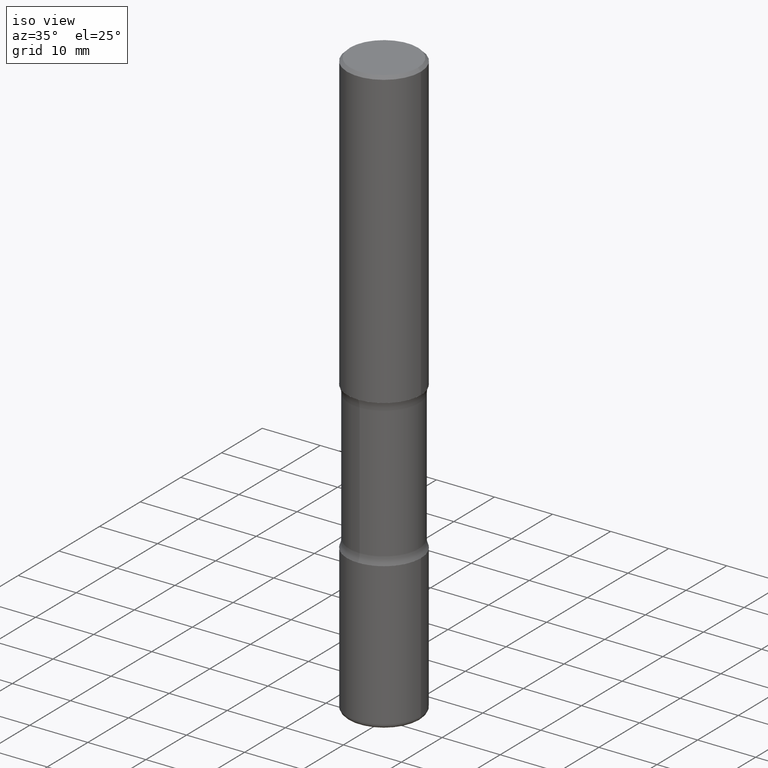
[diagram: clean part render]
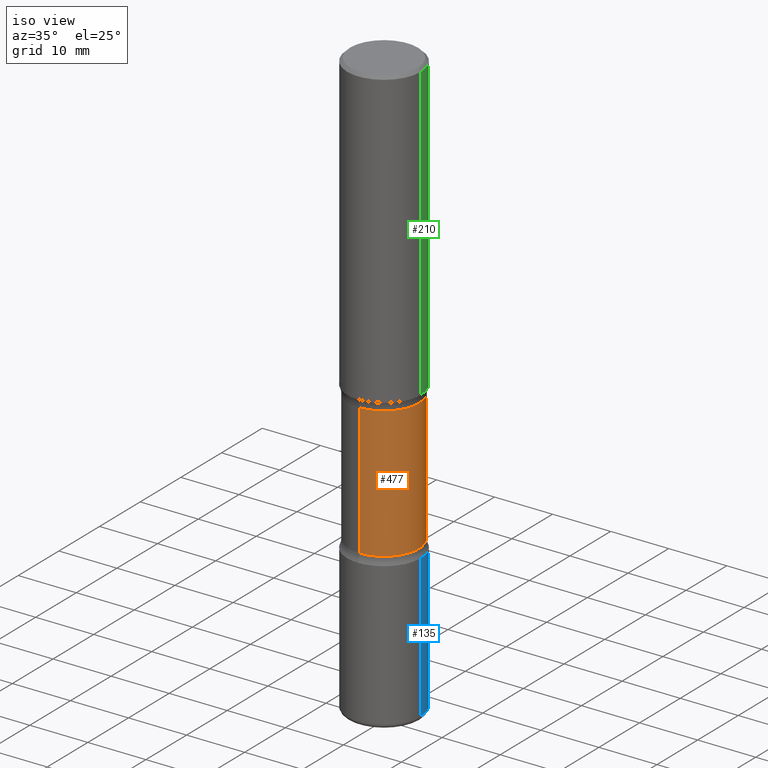
[diagram: same view with three faces highlighted in distinct colors, each labeled with its STEP entity id]
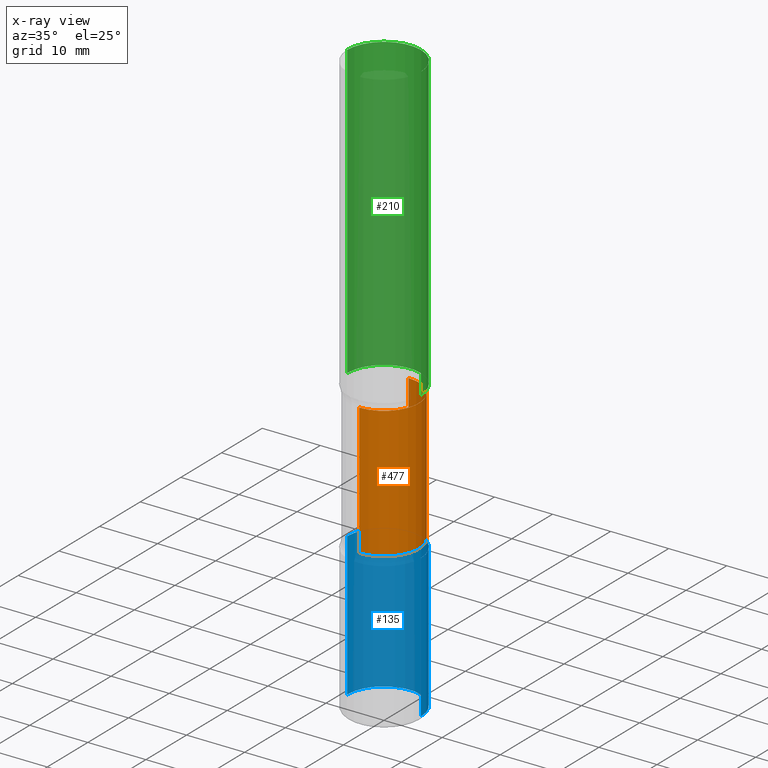
[diagram: x-ray of the same camera — body ghosted, the three highlighted faces saturated]
A machine part, iso view with three faces highlighted in distinct colors.
The next image is the same camera in x-ray (body ghosted, the three faces saturated) — at least one of them is partly hidden behind the body in this view.
Their STEP definitions:

[orange] entity #477 — the highlighted cylindrical surface (partial cylindrical patch) has radius 6.0325 mm, axis along (0, -0, -1).
#23 = CYLINDRICAL_SURFACE ( 'NONE', #364, 0.2375000000000000999 ) ;
#29 = CARTESIAN_POINT ( 'NONE',  ( 1.658453635950538436E-15, 0.2374999999999928557, -2.054486236794259568 ) ) ;
#39 = CARTESIAN_POINT ( 'NONE',  ( 7.198535619023675570E-29, -1.029083161580289368E-14, -2.945513763205741320 ) ) ;
#42 = CARTESIAN_POINT ( 'NONE',  ( 4.943898765775623630E-29, -7.288170524422749615E-15, -2.054486236794258680 ) ) ;
#56 = VECTOR ( 'NONE', #376, 39.37007874015748143 ) ;
#99 = ORIENTED_EDGE ( 'NONE', *, *, #448, .T. ) ;
#132 = DIRECTION ( 'NONE',  ( 6.982962677686265133E-15, 1.000000000000000000, -3.450755360418014766E-15 ) ) ;
#166 = CARTESIAN_POINT ( 'NONE',  ( -1.629368274470640415E-15, -0.2375000000000139222, -3.999999999999999556 ) ) ;
#169 = CIRCLE ( 'NONE', #224, 0.2375000000000000722 ) ;
#174 = CARTESIAN_POINT ( 'NONE',  ( 9.866784870866931853E-29, -1.384432990936266734E-14, -4.000000000000000000 ) ) ;
#189 = LINE ( 'NONE', #166, #56 ) ;
#224 = AXIS2_PLACEMENT_3D ( 'NONE', #39, #370, #532 ) ;
#236 = VERTEX_POINT ( 'NONE', #423 ) ;
#255 = DIRECTION ( 'NONE',  ( 2.530378452311521502E-29, -3.369885892833230986E-15, -1.000000000000000000 ) ) ;
#261 = ORIENTED_EDGE ( 'NONE', *, *, #281, .F. ) ;
#280 = CIRCLE ( 'NONE', #429, 0.2375000000000001277 ) ;
#281 = EDGE_CURVE ( 'NONE', #553, #522, #169, .T. ) ;
#300 = DIRECTION ( 'NONE',  ( 6.982962677686265133E-15, 1.000000000000000000, -2.300503573612010239E-15 ) ) ;
#332 = LINE ( 'NONE', #489, #534 ) ;
#345 = EDGE_CURVE ( 'NONE', #557, #553, #332, .T. ) ;
#346 = DIRECTION ( 'NONE',  ( 2.530378452311521502E-29, -3.369885892833230986E-15, -1.000000000000000000 ) ) ;
#347 = ORIENTED_EDGE ( 'NONE', *, *, #345, .F. ) ;
#364 = AXIS2_PLACEMENT_3D ( 'NONE', #174, #255, #300 ) ;
#370 = DIRECTION ( 'NONE',  ( 2.530378452311521502E-29, -3.369885892833230986E-15, -1.000000000000000000 ) ) ;
#376 = DIRECTION ( 'NONE',  ( 2.530378452311521502E-29, -3.369885892833230592E-15, -1.000000000000000000 ) ) ;
#399 = DIRECTION ( 'NONE',  ( 2.530378452311521502E-29, -3.369885892833230592E-15, -1.000000000000000000 ) ) ;
#423 = CARTESIAN_POINT ( 'NONE',  ( -1.672246386956763723E-15, -0.2375000000000074274, -2.054486236794258236 ) ) ;
#429 = AXIS2_PLACEMENT_3D ( 'NONE', #42, #346, #132 ) ;
#435 = ORIENTED_EDGE ( 'NONE', *, *, #519, .T. ) ;
#448 = EDGE_CURVE ( 'NONE', #236, #522, #189, .T. ) ;
#468 = EDGE_LOOP ( 'NONE', ( #435, #99, #261, #347 ) ) ;
#477 = ADVANCED_FACE ( 'NONE', ( #543 ), #23, .T. ) ;
#489 = CARTESIAN_POINT ( 'NONE',  ( 1.658453635950587543E-15, 0.2374999999999862776, -4.000000000000000888 ) ) ;
#502 = CARTESIAN_POINT ( 'NONE',  ( -1.672246386956739071E-15, -0.2375000000000103417, -2.945513763205740876 ) ) ;
#519 = EDGE_CURVE ( 'NONE', #557, #236, #280, .T. ) ;
#522 = VERTEX_POINT ( 'NONE', #502 ) ;
#532 = DIRECTION ( 'NONE',  ( 6.982962677686265133E-15, 1.000000000000000000, -2.300503573612010239E-15 ) ) ;
#534 = VECTOR ( 'NONE', #399, 39.37007874015748143 ) ;
#540 = CARTESIAN_POINT ( 'NONE',  ( 1.658453635950560525E-15, 0.2374999999999897748, -2.945513763205741764 ) ) ;
#543 = FACE_OUTER_BOUND ( 'NONE', #468, .T. ) ;
#553 = VERTEX_POINT ( 'NONE', #540 ) ;
#557 = VERTEX_POINT ( 'NONE', #29 ) ;

[blue] entity #135 — the highlighted cylindrical surface (partial cylindrical patch) has radius 6.35 mm, axis along (-0, 0, 1).
#28 = DIRECTION ( 'NONE',  ( 1.000000000000000000, -6.982962677686267499E-15, 0.000000000000000000 ) ) ;
#65 = VECTOR ( 'NONE', #287, 39.37007874015748143 ) ;
#68 = FACE_OUTER_BOUND ( 'NONE', #466, .T. ) ;
#73 = DIRECTION ( 'NONE',  ( -2.445468806185136597E-29, 3.491481338843145583E-15, 1.000000000000000000 ) ) ;
#95 = DIRECTION ( 'NONE',  ( 1.000000000000000000, -6.982962677686266711E-15, 4.876176775795935793E-29 ) ) ;
#129 = VERTEX_POINT ( 'NONE', #157 ) ;
#135 = ADVANCED_FACE ( 'NONE', ( #68 ), #408, .T. ) ;
#139 = CARTESIAN_POINT ( 'NONE',  ( 0.000000000000000000, 0.000000000000000000, 0.000000000000000000 ) ) ;
#157 = CARTESIAN_POINT ( 'NONE',  ( 0.2500000000000002776, -1.222018468595100619E-14, -3.000000000000000444 ) ) ;
#159 = EDGE_CURVE ( 'NONE', #172, #366, #411, .T. ) ;
#165 = LINE ( 'NONE', #335, #204 ) ;
#172 = VERTEX_POINT ( 'NONE', #342 ) ;
#199 = EDGE_CURVE ( 'NONE', #219, #172, #231, .T. ) ;
#204 = VECTOR ( 'NONE', #494, 39.37007874015748143 ) ;
#205 = AXIS2_PLACEMENT_3D ( 'NONE', #496, #506, #550 ) ;
#211 = CARTESIAN_POINT ( 'NONE',  ( 0.2500000000000002220, -1.560692158462885722E-14, -3.970000000000000639 ) ) ;
#219 = VERTEX_POINT ( 'NONE', #211 ) ;
#223 = ORIENTED_EDGE ( 'NONE', *, *, #456, .F. ) ;
#231 = CIRCLE ( 'NONE', #348, 0.2500000000000003886 ) ;
#233 = EDGE_CURVE ( 'NONE', #219, #129, #165, .T. ) ;
#265 = CIRCLE ( 'NONE', #205, 0.2500000000000002776 ) ;
#287 = DIRECTION ( 'NONE',  ( -2.445468806185136877E-29, 3.491481338843145188E-15, 1.000000000000000000 ) ) ;
#299 = CARTESIAN_POINT ( 'NONE',  ( 9.708511160554993993E-29, -1.386118091520729054E-14, -3.970000000000000639 ) ) ;
#306 = ORIENTED_EDGE ( 'NONE', *, *, #159, .T. ) ;
#314 = AXIS2_PLACEMENT_3D ( 'NONE', #139, #510, #95 ) ;
#335 = CARTESIAN_POINT ( 'NONE',  ( 0.2500000000000003331, -1.745740669421569044E-15, 1.219044193948985630E-29 ) ) ;
#342 = CARTESIAN_POINT ( 'NONE',  ( -0.2500000000000002220, -1.208482407580703850E-14, -3.970000000000000639 ) ) ;
#348 = AXIS2_PLACEMENT_3D ( 'NONE', #299, #73, #28 ) ;
#366 = VERTEX_POINT ( 'NONE', #446 ) ;
#408 = CYLINDRICAL_SURFACE ( 'NONE', #314, 0.2500000000000003331 ) ;
#411 = LINE ( 'NONE', #536, #65 ) ;
#446 = CARTESIAN_POINT ( 'NONE',  ( -0.2500000000000002776, -1.039145562646811219E-14, -3.000000000000000444 ) ) ;
#456 = EDGE_CURVE ( 'NONE', #129, #366, #265, .T. ) ;
#466 = EDGE_LOOP ( 'NONE', ( #481, #306, #223, #503 ) ) ;
#481 = ORIENTED_EDGE ( 'NONE', *, *, #199, .T. ) ;
#494 = DIRECTION ( 'NONE',  ( -2.445468806185136877E-29, 3.491481338843145188E-15, 1.000000000000000000 ) ) ;
#496 = CARTESIAN_POINT ( 'NONE',  ( 7.336406418555409790E-29, -1.047444401652943635E-14, -3.000000000000000444 ) ) ;
#503 = ORIENTED_EDGE ( 'NONE', *, *, #233, .F. ) ;
#506 = DIRECTION ( 'NONE',  ( -2.445468806185136597E-29, 3.491481338843145583E-15, 1.000000000000000000 ) ) ;
#510 = DIRECTION ( 'NONE',  ( -2.445468806185136597E-29, 3.491481338843145583E-15, 1.000000000000000000 ) ) ;
#536 = CARTESIAN_POINT ( 'NONE',  ( -0.2500000000000003331, 1.776356839400252831E-15, -1.229733772563727987E-29 ) ) ;
#550 = DIRECTION ( 'NONE',  ( 1.000000000000000000, -6.982962677686270655E-15, 0.000000000000000000 ) ) ;

[green] entity #210 — the highlighted cylindrical surface (partial cylindrical patch) has radius 6.35 mm, axis along (-0, 0, 1).
#11 = DIRECTION ( 'NONE',  ( 1.000000000000000000, -6.982962677686265922E-15, 0.000000000000000000 ) ) ;
#59 = DIRECTION ( 'NONE',  ( -2.445468806185136877E-29, 3.491481338843145188E-15, 1.000000000000000000 ) ) ;
#84 = CYLINDRICAL_SURFACE ( 'NONE', #100, 0.2500000000000000555 ) ;
#93 = VERTEX_POINT ( 'NONE', #441 ) ;
#96 = AXIS2_PLACEMENT_3D ( 'NONE', #324, #279, #11 ) ;
#100 = AXIS2_PLACEMENT_3D ( 'NONE', #454, #418, #258 ) ;
#112 = CARTESIAN_POINT ( 'NONE',  ( 0.2499999999999999167, -1.784954126219745400E-15, -0.02000000000000006981 ) ) ;
#123 = CARTESIAN_POINT ( 'NONE',  ( -0.2499999999999999167, 1.675911042644703182E-15, -0.02000000000000006981 ) ) ;
#143 = CIRCLE ( 'NONE', #357, 0.2499999999999999167 ) ;
#147 = EDGE_LOOP ( 'NONE', ( #420, #212, #275, #385 ) ) ;
#151 = VECTOR ( 'NONE', #59, 39.37007874015748143 ) ;
#161 = CARTESIAN_POINT ( 'NONE',  ( -0.2500000000000000555, 1.776356839400250859E-15, -1.229733772563726866E-29 ) ) ;
#173 = DIRECTION ( 'NONE',  ( -2.445468806185136597E-29, 3.491481338843145583E-15, 1.000000000000000000 ) ) ;
#184 = EDGE_CURVE ( 'NONE', #93, #459, #450, .T. ) ;
#202 = EDGE_CURVE ( 'NONE', #358, #459, #143, .T. ) ;
#210 = ADVANCED_FACE ( 'NONE', ( #257 ), #84, .T. ) ;
#212 = ORIENTED_EDGE ( 'NONE', *, *, #184, .T. ) ;
#243 = CARTESIAN_POINT ( 'NONE',  ( 0.2500000000000000555, -1.745740669421567269E-15, 1.219044193948984228E-29 ) ) ;
#244 = VERTEX_POINT ( 'NONE', #247 ) ;
#247 = CARTESIAN_POINT ( 'NONE',  ( 0.2500000000000001665, -8.728703347107858632E-15, -2.000000000000000000 ) ) ;
#257 = FACE_OUTER_BOUND ( 'NONE', #147, .T. ) ;
#258 = DIRECTION ( 'NONE',  ( 1.000000000000000000, -6.982962677686267499E-15, 4.876176775795935793E-29 ) ) ;
#259 = VECTOR ( 'NONE', #330, 39.37007874015748143 ) ;
#275 = ORIENTED_EDGE ( 'NONE', *, *, #202, .F. ) ;
#279 = DIRECTION ( 'NONE',  ( -2.445468806185136597E-29, 3.491481338843145583E-15, 1.000000000000000000 ) ) ;
#324 = CARTESIAN_POINT ( 'NONE',  ( 4.890937612370273194E-29, -6.982962677686291165E-15, -2.000000000000000000 ) ) ;
#330 = DIRECTION ( 'NONE',  ( -2.445468806185136877E-29, 3.491481338843145188E-15, 1.000000000000000000 ) ) ;
#351 = EDGE_CURVE ( 'NONE', #244, #93, #422, .T. ) ;
#357 = AXIS2_PLACEMENT_3D ( 'NONE', #377, #173, #413 ) ;
#358 = VERTEX_POINT ( 'NONE', #112 ) ;
#377 = CARTESIAN_POINT ( 'NONE',  ( 4.890937612370289799E-31, -6.982962677686315028E-17, -0.02000000000000006981 ) ) ;
#385 = ORIENTED_EDGE ( 'NONE', *, *, #389, .F. ) ;
#389 = EDGE_CURVE ( 'NONE', #244, #358, #491, .T. ) ;
#413 = DIRECTION ( 'NONE',  ( 1.000000000000000000, -6.982962677686267499E-15, 0.000000000000000000 ) ) ;
#418 = DIRECTION ( 'NONE',  ( -2.445468806185136597E-29, 3.491481338843145583E-15, 1.000000000000000000 ) ) ;
#420 = ORIENTED_EDGE ( 'NONE', *, *, #351, .T. ) ;
#422 = CIRCLE ( 'NONE', #96, 0.2500000000000001665 ) ;
#441 = CARTESIAN_POINT ( 'NONE',  ( -0.2500000000000001665, -1.750039312831323809E-15, -2.000000000000000000 ) ) ;
#450 = LINE ( 'NONE', #161, #259 ) ;
#454 = CARTESIAN_POINT ( 'NONE',  ( 0.000000000000000000, 0.000000000000000000, 0.000000000000000000 ) ) ;
#459 = VERTEX_POINT ( 'NONE', #123 ) ;
#491 = LINE ( 'NONE', #243, #151 ) ;